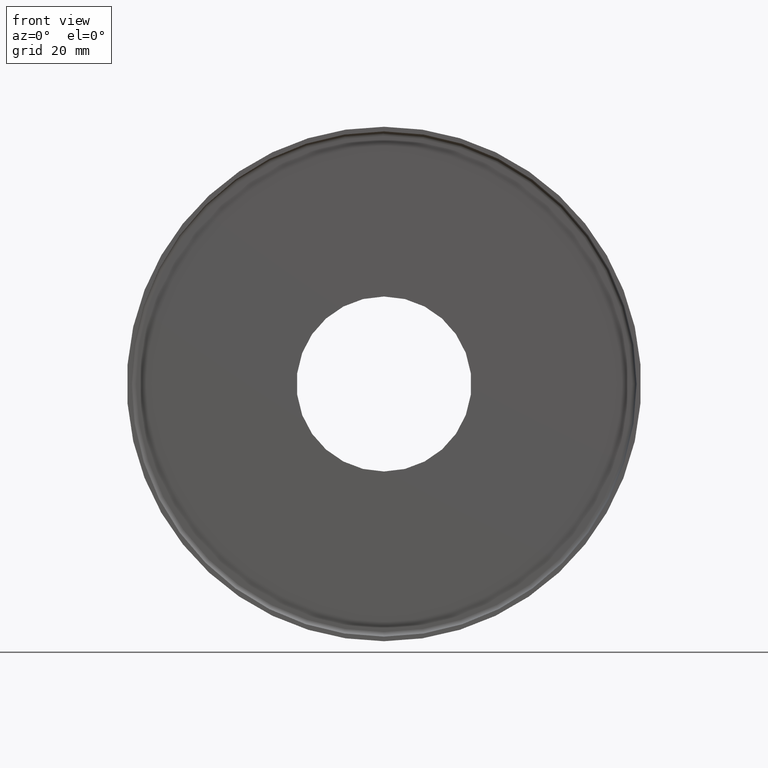
[diagram: clean part render]
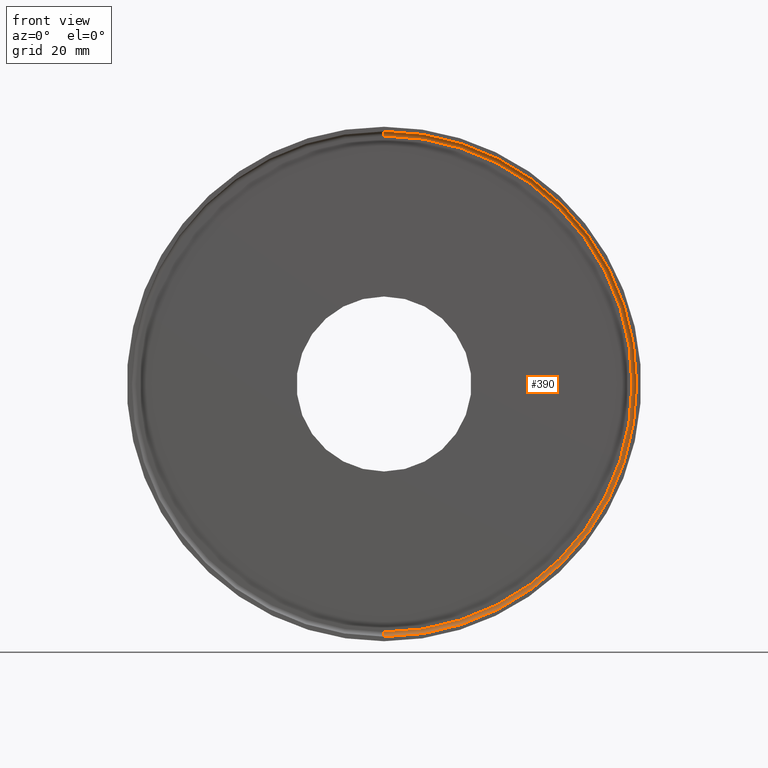
[diagram: same view with one face highlighted and labeled with its STEP entity id]
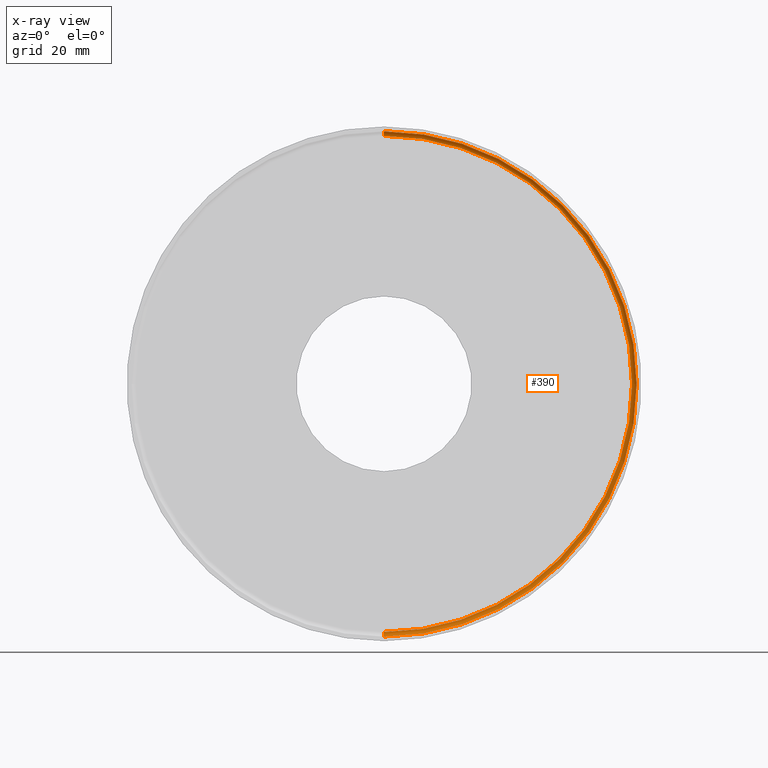
[diagram: x-ray of the same camera — body ghosted, the highlighted face saturated]
A machine part, front view. The second image highlights one B-rep face of the part: STEP entity #390.
The next image is the same camera in x-ray: the body ghosted, the highlighted face saturated — about 0% of this face is hidden behind the body in this view.
In plain terms, the highlighted toroidal blend (fillet) surface has major radius 54 mm and minor (blend) radius 1 mm.
Its self-contained STEP definition (entity closure, byte-faithful):
#4 = DIRECTION ( 'NONE',  ( -1.000000000000000000, 0.0000000000000000000, 0.0000000000000000000 ) ) ;
#14 = DIRECTION ( 'NONE',  ( 0.0000000000000000000, 0.0000000000000000000, 1.000000000000000000 ) ) ;
#21 = CIRCLE ( 'NONE', #205, 55.00000000000000700 ) ;
#22 = EDGE_LOOP ( 'NONE', ( #340, #261, #51, #141 ) ) ;
#28 = CARTESIAN_POINT ( 'NONE',  ( 0.0000000000000000000, 17.39999999999999900, 0.0000000000000000000 ) ) ;
#33 = DIRECTION ( 'NONE',  ( 1.000000000000000000, -0.0000000000000000000, 1.224646799147353200E-016 ) ) ;
#38 = CIRCLE ( 'NONE', #291, 1.000000000000000900 ) ;
#51 = ORIENTED_EDGE ( 'NONE', *, *, #332, .T. ) ;
#68 = EDGE_CURVE ( 'NONE', #224, #273, #324, .T. ) ;
#69 = CARTESIAN_POINT ( 'NONE',  ( 6.674325055353075800E-015, 17.39999999999999900, -54.00000000000000700 ) ) ;
#87 = CARTESIAN_POINT ( 'NONE',  ( 0.0000000000000000000, 16.39999999999999900, 0.0000000000000000000 ) ) ;
#96 = CARTESIAN_POINT ( 'NONE',  ( 0.0000000000000000000, 16.39999999999999900, -55.00000000000000700 ) ) ;
#108 = VERTEX_POINT ( 'NONE', #213 ) ;
#109 = AXIS2_PLACEMENT_3D ( 'NONE', #87, #199, #14 ) ;
#115 = AXIS2_PLACEMENT_3D ( 'NONE', #28, #242, #344 ) ;
#141 = ORIENTED_EDGE ( 'NONE', *, *, #68, .T. ) ;
#142 = VERTEX_POINT ( 'NONE', #96 ) ;
#148 = CARTESIAN_POINT ( 'NONE',  ( 0.0000000000000000000, 16.39999999999999900, 54.00000000000000700 ) ) ;
#149 = FACE_OUTER_BOUND ( 'NONE', #22, .T. ) ;
#150 = EDGE_CURVE ( 'NONE', #142, #108, #21, .T. ) ;
#155 = DIRECTION ( 'NONE',  ( 0.0000000000000000000, 0.0000000000000000000, -1.000000000000000000 ) ) ;
#192 = CARTESIAN_POINT ( 'NONE',  ( 0.0000000000000000000, 16.39999999999999900, 0.0000000000000000000 ) ) ;
#199 = DIRECTION ( 'NONE',  ( 0.0000000000000000000, 1.000000000000000000, 0.0000000000000000000 ) ) ;
#205 = AXIS2_PLACEMENT_3D ( 'NONE', #192, #221, #155 ) ;
#213 = CARTESIAN_POINT ( 'NONE',  ( 6.735557395310444200E-015, 16.39999999999999900, 55.00000000000000700 ) ) ;
#221 = DIRECTION ( 'NONE',  ( -0.0000000000000000000, -1.000000000000000000, -0.0000000000000000000 ) ) ;
#224 = VERTEX_POINT ( 'NONE', #296 ) ;
#227 = TOROIDAL_SURFACE ( 'NONE', #109, 54.00000000000000700, 1.000000000000000000 ) ;
#232 = AXIS2_PLACEMENT_3D ( 'NONE', #148, #4, #316 ) ;
#242 = DIRECTION ( 'NONE',  ( 0.0000000000000000000, 1.000000000000000000, 0.0000000000000000000 ) ) ;
#261 = ORIENTED_EDGE ( 'NONE', *, *, #150, .T. ) ;
#273 = VERTEX_POINT ( 'NONE', #69 ) ;
#291 = AXIS2_PLACEMENT_3D ( 'NONE', #380, #33, #342 ) ;
#296 = CARTESIAN_POINT ( 'NONE',  ( 0.0000000000000000000, 17.39999999999999900, 54.00000000000000700 ) ) ;
#309 = EDGE_CURVE ( 'NONE', #142, #273, #38, .T. ) ;
#316 = DIRECTION ( 'NONE',  ( 0.0000000000000000000, 0.0000000000000000000, 1.000000000000000000 ) ) ;
#324 = CIRCLE ( 'NONE', #115, 54.00000000000000700 ) ;
#330 = CIRCLE ( 'NONE', #232, 1.000000000000000900 ) ;
#332 = EDGE_CURVE ( 'NONE', #108, #224, #330, .T. ) ;
#340 = ORIENTED_EDGE ( 'NONE', *, *, #309, .F. ) ;
#342 = DIRECTION ( 'NONE',  ( 1.224646799147349500E-016, 0.0000000000000000000, -1.000000000000000000 ) ) ;
#344 = DIRECTION ( 'NONE',  ( 0.0000000000000000000, 0.0000000000000000000, 1.000000000000000000 ) ) ;
#380 = CARTESIAN_POINT ( 'NONE',  ( 6.613092715395708300E-015, 16.39999999999999900, -54.00000000000000700 ) ) ;
#390 = ADVANCED_FACE ( 'NONE', ( #149 ), #227, .F. ) ;